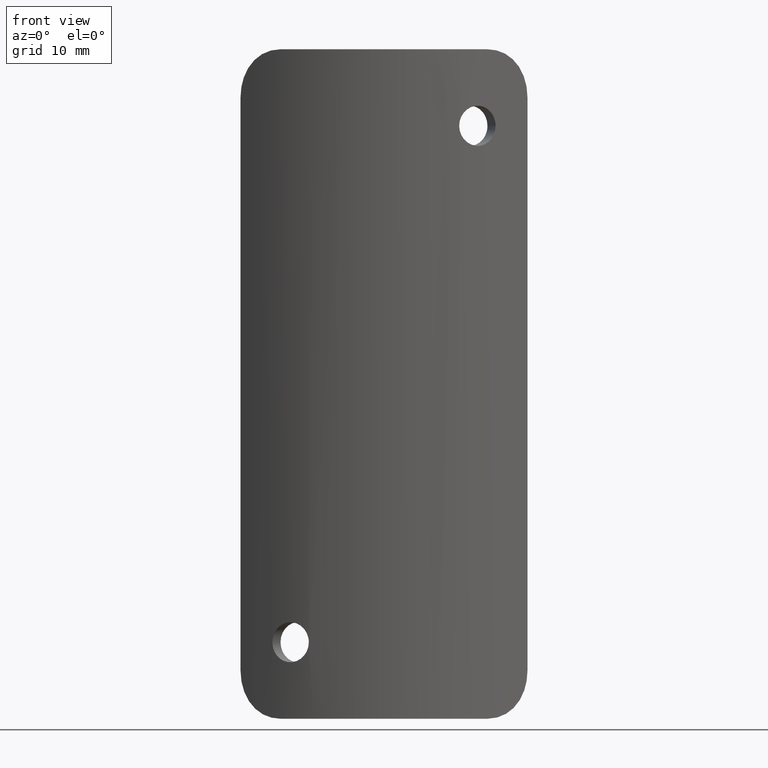
[diagram: clean part render]
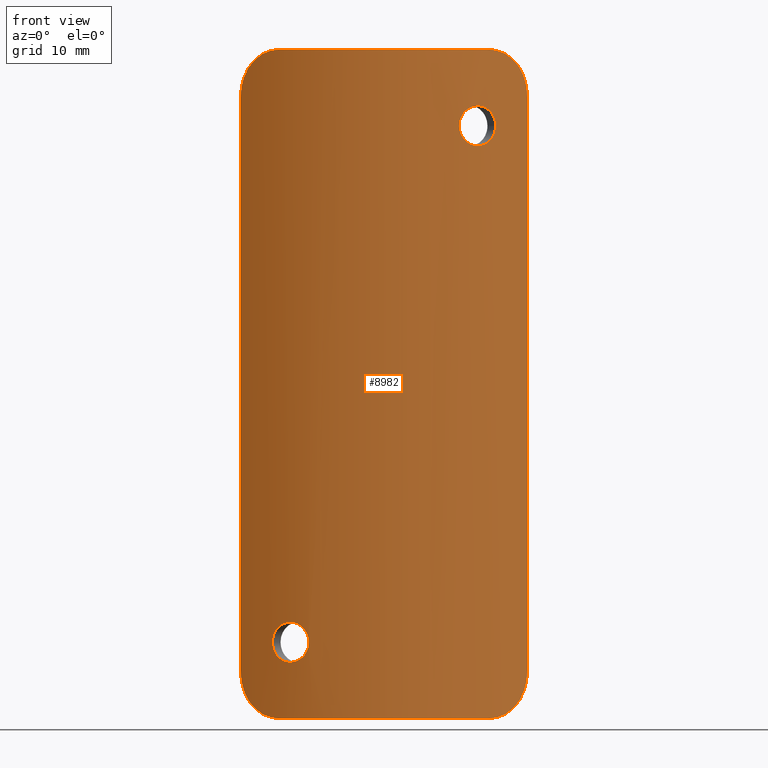
[diagram: same view with one face highlighted and labeled with its STEP entity id]
A machine part, front view. The second image highlights one B-rep face of the part: STEP entity #8982.
In plain terms, the highlighted cylindrical surface (partial cylindrical patch) has radius 23.2 mm, axis along (-0, -0, -1).
Its self-contained STEP definition (entity closure, byte-faithful):
#132 = CARTESIAN_POINT ( 'NONE',  ( 12.23442262474282500, 3.487468555197882600, -34.74389137964884400 ) ) ;
#244 = DIRECTION ( 'NONE',  ( -0.0000000000000000000, -0.0000000000000000000, -1.000000000000000000 ) ) ;
#322 = CARTESIAN_POINT ( 'NONE',  ( 15.00000000000000000, 5.501412485737739100, -30.00000000000000000 ) ) ;
#417 = EDGE_CURVE ( 'NONE', #5100, #6401, #10190, .T. ) ;
#570 = CARTESIAN_POINT ( 'NONE',  ( -14.03022683508562300, 4.721720751935532000, -33.31645638462633500 ) ) ;
#622 = CARTESIAN_POINT ( 'NONE',  ( 9.307728600475178000, 1.948548024565661900, 29.03250418342880600 ) ) ;
#650 = CARTESIAN_POINT ( 'NONE',  ( -12.75482834120329100, 3.818407806103518300, -34.50215239320542800 ) ) ;
#660 = CARTESIAN_POINT ( 'NONE',  ( 7.962638771654095400, 1.409194976379207800, 26.32284805849836200 ) ) ;
#688 = CARTESIAN_POINT ( 'NONE',  ( -11.12645634917023200, 2.839450259414585200, -34.99999999999999300 ) ) ;
#690 = CARTESIAN_POINT ( 'NONE',  ( -14.48444419914794600, 5.076120273882284400, 32.51901059687787000 ) ) ;
#739 = CARTESIAN_POINT ( 'NONE',  ( 7.913158109340555400, 1.390989553821755600, 27.54980088115337700 ) ) ;
#759 = ORIENTED_EDGE ( 'NONE', *, *, #8626, .T. ) ;
#779 = CARTESIAN_POINT ( 'NONE',  ( -11.42523216493447400, 3.008172746812964000, -28.05423771273592600 ) ) ;
#791 = VERTEX_POINT ( 'NONE', #8908 ) ;
#814 = CARTESIAN_POINT ( 'NONE',  ( -11.66769691000061800, 3.147447822811022100, -27.13784508582847000 ) ) ;
#838 = DIRECTION ( 'NONE',  ( 0.0000000000000000000, 0.0000000000000000000, 1.000000000000000000 ) ) ;
#886 = EDGE_LOOP ( 'NONE', ( #7632 ) ) ;
#1027 = CARTESIAN_POINT ( 'NONE',  ( 12.75482834120329500, 3.818407806103519600, 34.50215239320544200 ) ) ;
#1150 = CARTESIAN_POINT ( 'NONE',  ( 11.96464518403134900, 3.322569116121500500, -34.83727335060223900 ) ) ;
#1361 = CARTESIAN_POINT ( 'NONE',  ( -7.874127160052063700, 1.377102860145696900, -27.27529048676442300 ) ) ;
#1390 = CARTESIAN_POINT ( 'NONE',  ( -14.60700381599535000, 5.175254722145281100, -32.22582440934785100 ) ) ;
#1391 = CARTESIAN_POINT ( 'NONE',  ( 9.308753193418700900, 1.948993873017810700, 24.96716583704933600 ) ) ;
#1438 = CARTESIAN_POINT ( 'NONE',  ( -8.619728285299064700, 1.659852904994118200, -28.67867757179805800 ) ) ;
#1476 = CARTESIAN_POINT ( 'NONE',  ( -10.29566393990228300, 2.409197912018562300, -29.03283416295068900 ) ) ;
#1505 = CARTESIAN_POINT ( 'NONE',  ( 9.677206955224203700, 2.114201460649687300, 29.09986515293257600 ) ) ;
#1546 = CARTESIAN_POINT ( 'NONE',  ( -11.96464518403135100, 3.322569116121499600, 34.83727335060223900 ) ) ;
#1555 = CARTESIAN_POINT ( 'NONE',  ( -9.556401047898733100, 2.059204641938932500, -24.91338616533125000 ) ) ;
#1585 = CARTESIAN_POINT ( 'NONE',  ( -13.65466857054987100, 4.442489584951294600, 33.78011486728410500 ) ) ;
#1600 = CARTESIAN_POINT ( 'NONE',  ( -8.111820650231072300, 1.464097353052939100, -25.94142409401207800 ) ) ;
#1622 = CARTESIAN_POINT ( 'NONE',  ( -10.83314977002181200, 2.684570049343925300, -35.00000000000000000 ) ) ;
#1630 = CARTESIAN_POINT ( 'NONE',  ( 10.29340675336584000, 2.408083138645950200, 29.03347459347923000 ) ) ;
#1634 = CARTESIAN_POINT ( 'NONE',  ( -9.680891404952451000, 2.115892807571261500, -24.89986710950886100 ) ) ;
#1643 = DIRECTION ( 'NONE',  ( -1.000000000000000000, 0.0000000000000000000, 0.0000000000000000000 ) ) ;
#1667 = CARTESIAN_POINT ( 'NONE',  ( -11.21607812100468500, 2.891153436347354800, -28.38760635895905400 ) ) ;
#1692 = DIRECTION ( 'NONE',  ( 1.000000000000000000, 0.0000000000000000000, 0.0000000000000000000 ) ) ;
#1788 = B_SPLINE_CURVE_WITH_KNOTS ( 'NONE', 3,
 ( #9907, #7125, #1793, #2687, #10807, #8015, #5437, #10649, #10763, #4411, #8270, #4665, #2926, #8184, #1027, #5485, #5626, #8302, #6434, #2965 ),
 .UNSPECIFIED., .F., .F.,
 ( 4, 2, 2, 2, 2, 2, 2, 2, 2, 4 ),
 ( 0.0000000000000000000, 0.0009810281872593648100, 0.001471542280889052600, 0.001962056374518740000, 0.002943084561778097900, 0.003924112749037454900, 0.004905140936296812300, 0.005886169123556169800, 0.006867197310815527200, 0.007848225498074885500 ),
 .UNSPECIFIED. ) ;
#1793 = CARTESIAN_POINT ( 'NONE',  ( 14.97510921594164300, 5.480231257654566000, 30.65786404406684100 ) ) ;
#1814 = CIRCLE ( 'NONE', #6909, 23.19999999999999900 ) ;
#1886 = CARTESIAN_POINT ( 'NONE',  ( 11.82782812730095200, 3.240834637888148500, -34.87596285695244100 ) ) ;
#1964 = CARTESIAN_POINT ( 'NONE',  ( 14.87559443967096800, 5.396603859556192300, -31.30744440984392800 ) ) ;
#1966 = CYLINDRICAL_SURFACE ( 'NONE', #9991, 23.19999999999999900 ) ;
#2036 = CARTESIAN_POINT ( 'NONE',  ( -15.00000000000000000, 5.501412485737739100, -30.00000000000000000 ) ) ;
#2039 = CARTESIAN_POINT ( 'NONE',  ( 14.97510956906191000, 5.480228064059918600, -30.65951420281654200 ) ) ;
#2066 = EDGE_CURVE ( 'NONE', #6401, #10739, #10256, .T. ) ;
#2243 = CARTESIAN_POINT ( 'NONE',  ( -15.00000000000000000, 5.501412485737739100, 30.00000000000000400 ) ) ;
#2281 = CARTESIAN_POINT ( 'NONE',  ( 8.954385668924171400, 1.797309329608360000, 25.11200540083283200 ) ) ;
#2314 = CARTESIAN_POINT ( 'NONE',  ( 11.43648963290071300, 3.014415960502157900, 28.05857590598792900 ) ) ;
#2318 = CARTESIAN_POINT ( 'NONE',  ( -9.302593747911236800, 1.945220261506654300, -29.04462636027112400 ) ) ;
#2350 = CARTESIAN_POINT ( 'NONE',  ( 7.925123667723340800, 1.395570529295715200, 26.45374257106009700 ) ) ;
#2394 = CARTESIAN_POINT ( 'NONE',  ( 15.00000000000000000, 5.501412485737739100, 30.00000000000000400 ) ) ;
#2395 = CARTESIAN_POINT ( 'NONE',  ( 8.061953416911000800, 1.445742787011475000, 26.06851042738382800 ) ) ;
#2402 = CARTESIAN_POINT ( 'NONE',  ( -7.861247753960720200, 1.372476463170457800, -27.13881220170326700 ) ) ;
#2426 = CARTESIAN_POINT ( 'NONE',  ( -12.36767524882911800, 3.570842073408303300, 34.68895253670208200 ) ) ;
#2430 = CARTESIAN_POINT ( 'NONE',  ( 8.530999436278357000, 1.625206703639449100, 25.41642991945718000 ) ) ;
#2436 = CARTESIAN_POINT ( 'NONE',  ( -11.57443955660469500, 3.093405342131880800, -27.67715194150164500 ) ) ;
#2463 = CARTESIAN_POINT ( 'NONE',  ( -13.44412280948601400, 4.290459674662161900, 33.99065576229236300 ) ) ;
#2477 = VERTEX_POINT ( 'NONE', #5781 ) ;
#2592 = CARTESIAN_POINT ( 'NONE',  ( -11.43809849459442800, 3.015329808666905400, -25.94461488318422600 ) ) ;
#2616 = CARTESIAN_POINT ( 'NONE',  ( 0.0000000000000000000, 23.19999999999999900, 35.00000000000000000 ) ) ;
#2687 = CARTESIAN_POINT ( 'NONE',  ( 14.90157689353585000, 5.418435637887928800, 31.13908380836160100 ) ) ;
#2926 = CARTESIAN_POINT ( 'NONE',  ( 13.45131285305777900, 4.295551042060822900, 33.98416085090834600 ) ) ;
#2928 = CARTESIAN_POINT ( 'NONE',  ( 15.00000000000000000, 5.501412485737739100, -30.00000000000000000 ) ) ;
#2965 = CARTESIAN_POINT ( 'NONE',  ( 10.83314977002181200, 2.684570049343922200, 35.00000000000000000 ) ) ;
#3033 = CARTESIAN_POINT ( 'NONE',  ( 11.66774045951465100, 3.147473162481369900, 27.00000000000000000 ) ) ;
#3070 = CARTESIAN_POINT ( 'NONE',  ( -7.861247753960722000, 1.372476463170457800, -27.00000000000000000 ) ) ;
#3106 = EDGE_CURVE ( 'NONE', #2477, #11276, #9357, .T. ) ;
#3147 = CARTESIAN_POINT ( 'NONE',  ( 10.05415582883520800, 2.289977052102594600, 24.90014931470349800 ) ) ;
#3228 = CARTESIAN_POINT ( 'NONE',  ( 7.861153341691664100, 1.372442460309304200, 27.27339045575411100 ) ) ;
#3268 = CARTESIAN_POINT ( 'NONE',  ( 7.861295158362414000, 1.372493536007548800, 26.86215491417153700 ) ) ;
#3327 = EDGE_CURVE ( 'NONE', #5693, #5693, #9001, .T. ) ;
#3342 = CARTESIAN_POINT ( 'NONE',  ( -15.00000000000000000, 5.501412485737739100, 30.00000000000000400 ) ) ;
#3347 = CARTESIAN_POINT ( 'NONE',  ( 8.256964454953582300, 1.518208073395195000, 28.28970354053993200 ) ) ;
#3355 = CARTESIAN_POINT ( 'NONE',  ( -10.95011621297468500, 2.746444646752357300, -28.67032311735061300 ) ) ;
#3386 = CARTESIAN_POINT ( 'NONE',  ( -12.75293862320744300, 3.817134258757923800, 34.50339729612709800 ) ) ;
#3391 = CARTESIAN_POINT ( 'NONE',  ( 10.94887909512751800, 2.745780214667029800, 28.67142733655464300 ) ) ;
#3397 = CARTESIAN_POINT ( 'NONE',  ( -10.29666407528058900, 2.409696209888569000, -24.96749581657120100 ) ) ;
#3492 = VECTOR ( 'NONE', #244, 1000.000000000000000 ) ;
#3508 = CARTESIAN_POINT ( 'NONE',  ( -11.04362978023476800, 2.796865475138933900, -28.58357008054281700 ) ) ;
#3731 = CARTESIAN_POINT ( 'NONE',  ( 12.75293862320744300, 3.817134258757927800, -34.50339729612709800 ) ) ;
#3977 = CARTESIAN_POINT ( 'NONE',  ( 11.48261685958656400, 3.040825698963225000, 26.06854489139425400 ) ) ;
#4011 = CARTESIAN_POINT ( 'NONE',  ( 11.21543587615502200, 2.890804761030691100, 25.61173249437751700 ) ) ;
#4091 = CARTESIAN_POINT ( 'NONE',  ( 11.65591771116447400, 3.140580755667601300, 26.72470951323559200 ) ) ;
#4096 = DIRECTION ( 'NONE',  ( -0.0000000000000000000, -0.0000000000000000000, -1.000000000000000000 ) ) ;
#4127 = CARTESIAN_POINT ( 'NONE',  ( -7.924519912816604600, 1.395351361218778700, -27.54377451134175900 ) ) ;
#4197 = CARTESIAN_POINT ( 'NONE',  ( 11.29982798221459300, 2.936939717797600700, 28.29257028280422400 ) ) ;
#4232 = CARTESIAN_POINT ( 'NONE',  ( -12.99354470691067900, 3.978060727865324600, 34.35140152463027600 ) ) ;
#4238 = CARTESIAN_POINT ( 'NONE',  ( 10.41274259708186600, 2.467633843940527900, 28.99323138989153400 ) ) ;
#4245 = CARTESIAN_POINT ( 'NONE',  ( -11.30174177697097800, 2.938011056028557300, -25.71029645946008900 ) ) ;
#4270 = ORIENTED_EDGE ( 'NONE', *, *, #3106, .T. ) ;
#4271 = CARTESIAN_POINT ( 'NONE',  ( -12.99827888839000100, 3.981239534928378500, -34.34833038998072400 ) ) ;
#4289 = CARTESIAN_POINT ( 'NONE',  ( 0.0000000000000000000, 23.19999999999999900, 35.00000000000000000 ) ) ;
#4291 = CARTESIAN_POINT ( 'NONE',  ( -14.90157689353585000, 5.418435637887927900, -31.13908380836159800 ) ) ;
#4305 = CARTESIAN_POINT ( 'NONE',  ( -13.45131285305777900, 4.295551042060824700, -33.98416085090833100 ) ) ;
#4320 = CARTESIAN_POINT ( 'NONE',  ( -8.842775372096673100, 1.751028365325581400, -25.17644128419543400 ) ) ;
#4338 = FACE_BOUND ( 'NONE', #11386, .T. ) ;
#4369 = CARTESIAN_POINT ( 'NONE',  ( -14.79717746278124200, 5.331428635318053100, -31.61351948218466700 ) ) ;
#4399 = CARTESIAN_POINT ( 'NONE',  ( -10.41611459258833400, 2.469329201255621600, -25.00806111588921300 ) ) ;
#4411 = CARTESIAN_POINT ( 'NONE',  ( 14.19898874084782900, 4.851643174295933400, 33.05877579252637600 ) ) ;
#4586 = CARTESIAN_POINT ( 'NONE',  ( 12.36767524882912500, 3.570842073408308600, -34.68895253670207500 ) ) ;
#4624 = CARTESIAN_POINT ( 'NONE',  ( 13.65466857054987800, 4.442489584951296400, -33.78011486728410500 ) ) ;
#4665 = CARTESIAN_POINT ( 'NONE',  ( 13.65703972118552500, 4.444218622852116800, 33.77756137167098400 ) ) ;
#4705 = CARTESIAN_POINT ( 'NONE',  ( 10.83314977002181200, 2.684570049343925300, -35.00000000000000000 ) ) ;
#4764 = VERTEX_POINT ( 'NONE', #2394 ) ;
#4832 = ORIENTED_EDGE ( 'NONE', *, *, #3327, .T. ) ;
#4879 = CARTESIAN_POINT ( 'NONE',  ( 11.42636840326498800, 3.008815193725279600, 25.94795506955009000 ) ) ;
#4921 = CARTESIAN_POINT ( 'NONE',  ( 11.60954671122714600, 3.113707577823984400, 26.45622548865824400 ) ) ;
#4994 = CARTESIAN_POINT ( 'NONE',  ( -7.962648757339079200, 1.409198656063846800, -27.67717661205382000 ) ) ;
#5024 = CARTESIAN_POINT ( 'NONE',  ( 11.66774045951465100, 3.147473162481369000, 26.99999999999999600 ) ) ;
#5067 = CARTESIAN_POINT ( 'NONE',  ( 10.63969512896365000, 2.583183990132943600, 28.88797387252049400 ) ) ;
#5100 = VERTEX_POINT ( 'NONE', #5920 ) ;
#5113 = CARTESIAN_POINT ( 'NONE',  ( -7.914091286845179600, 1.391326100779150600, -26.44655874034764800 ) ) ;
#5142 = CARTESIAN_POINT ( 'NONE',  ( -14.87559443967096800, 5.396603859556190500, 31.30744440984392800 ) ) ;
#5145 = CARTESIAN_POINT ( 'NONE',  ( -14.48662438620404900, 5.077881101837939500, -32.51387117169059600 ) ) ;
#5179 = CARTESIAN_POINT ( 'NONE',  ( 10.83314977002181200, 2.684570049343922200, 35.00000000000000000 ) ) ;
#5190 = CARTESIAN_POINT ( 'NONE',  ( 8.628232413082935500, 1.663829277808723600, 28.66912078386215500 ) ) ;
#5268 = CARTESIAN_POINT ( 'NONE',  ( -11.04667431031917400, 2.798520213683701700, -25.41961516200658600 ) ) ;
#5399 = ORIENTED_EDGE ( 'NONE', *, *, #417, .T. ) ;
#5437 = CARTESIAN_POINT ( 'NONE',  ( 14.75377281999314100, 5.295526026184298900, 31.77020031090759000 ) ) ;
#5485 = CARTESIAN_POINT ( 'NONE',  ( 12.24443542670796800, 3.491992412594047600, 34.74863895066808100 ) ) ;
#5548 = ORIENTED_EDGE ( 'NONE', *, *, #6611, .F. ) ;
#5559 = CARTESIAN_POINT ( 'NONE',  ( 14.60603579175639400, 5.174473673707304900, -32.22804193931826700 ) ) ;
#5592 = LINE ( 'NONE', #9225, #3492 ) ;
#5604 = FACE_BOUND ( 'NONE', #886, .T. ) ;
#5626 = CARTESIAN_POINT ( 'NONE',  ( 11.97375992522363000, 3.326037271494497500, 34.84305435755177900 ) ) ;
#5693 = VERTEX_POINT ( 'NONE', #3070 ) ;
#5781 = CARTESIAN_POINT ( 'NONE',  ( 10.83314977002181200, 2.684570049343925300, -35.00000000000000000 ) ) ;
#5790 = CARTESIAN_POINT ( 'NONE',  ( 10.75307519127948400, 2.640931779352591500, 25.16488457428756900 ) ) ;
#5797 = DIRECTION ( 'NONE',  ( 1.000000000000000000, 0.0000000000000000000, 0.0000000000000000000 ) ) ;
#5818 = EDGE_CURVE ( 'NONE', #6525, #6525, #6166, .T. ) ;
#5824 = CARTESIAN_POINT ( 'NONE',  ( 9.554908008423368000, 2.058527005537564800, 24.91357048950122200 ) ) ;
#5870 = CARTESIAN_POINT ( 'NONE',  ( -8.265591076912894400, 1.522226984361852800, -28.28026605584409500 ) ) ;
#5920 = CARTESIAN_POINT ( 'NONE',  ( -10.83314977002181200, 2.684570049343922200, 35.00000000000000000 ) ) ;
#5974 = CARTESIAN_POINT ( 'NONE',  ( -11.41317114607336000, 2.998889989127933900, -34.96881826492291600 ) ) ;
#5987 = CARTESIAN_POINT ( 'NONE',  ( -7.861247753960720200, 1.372476463170458000, -27.00000000000000400 ) ) ;
#6020 = CARTESIAN_POINT ( 'NONE',  ( -14.19393931542399100, 4.847718757738250300, 33.06730687304268200 ) ) ;
#6065 = CARTESIAN_POINT ( 'NONE',  ( 9.553043936061357000, 2.057687583426996500, 29.08612928894901000 ) ) ;
#6079 = DIRECTION ( 'NONE',  ( -0.0000000000000000000, -0.0000000000000000000, -1.000000000000000000 ) ) ;
#6103 = CARTESIAN_POINT ( 'NONE',  ( -11.48260408593012900, 3.040818389848090500, -27.93148957261618600 ) ) ;
#6147 = CARTESIAN_POINT ( 'NONE',  ( -10.63964409550850300, 2.583158239894866300, -28.88799459916717200 ) ) ;
#6166 = B_SPLINE_CURVE_WITH_KNOTS ( 'NONE', 3,
 ( #8410, #9338, #4091, #4921, #10357, #3977, #4879, #11148, #4011, #10291, #5790, #8486, #3147, #11226, #5824, #1391, #7609, #2281, #8525, #9602, #2430, #6920, #10518, #7801, #2395, #660, #2350, #8568, #3268, #3228, #739, #7678, #3347, #11462, #5190, #10398, #11336, #10437, #622, #6065, #1505, #11306, #9642, #1630, #4238, #5067, #7720, #3391, #6953, #4197, #2314, #6833, #8648, #5024 ),
 .UNSPECIFIED., .T., .F.,
 ( 4, 2, 2, 2, 2, 2, 2, 2, 2, 2, 2, 2, 2, 2, 2, 2, 2, 2, 2, 2, 2, 2, 2, 2, 2, 2, 4 ),
 ( 0.0000000000000000000, 0.0004105094372159218200, 0.0008210188744318436300, 0.001231528311647765500, 0.001642037748863687300, 0.002463056623295541400, 0.003284075497727396200, 0.003694584934943321400, 0.004105094372159245400, 0.004515603809375171000, 0.004926113246591095000, 0.005336622683807019800, 0.005747132121022944600, 0.006157641558238869300, 0.006568150995454794100, 0.007389169869886654100, 0.008210188744318513300, 0.008620698181534446800, 0.009031207618750380200, 0.009441717055966313700, 0.009852226493182247200, 0.01026273593039818100, 0.01067324536761411400, 0.01108375480483004800, 0.01149426424204598100, 0.01231528311647784800, 0.01313630199090971700 ),
 .UNSPECIFIED. ) ;
#6324 = CARTESIAN_POINT ( 'NONE',  ( 12.99354470691068500, 3.978060727865325500, -34.35140152463026900 ) ) ;
#6394 = CARTESIAN_POINT ( 'NONE',  ( 14.19393931542399500, 4.847718757738251200, -33.06730687304266800 ) ) ;
#6401 = VERTEX_POINT ( 'NONE', #2243 ) ;
#6418 = ORIENTED_EDGE ( 'NONE', *, *, #9320, .F. ) ;
#6434 = CARTESIAN_POINT ( 'NONE',  ( 11.12645634917023500, 2.839450259414585200, 35.00000000000000000 ) ) ;
#6525 = VERTEX_POINT ( 'NONE', #3033 ) ;
#6574 = VERTEX_POINT ( 'NONE', #5179 ) ;
#6611 = EDGE_CURVE ( 'NONE', #5100, #6574, #1814, .T. ) ;
#6712 = CARTESIAN_POINT ( 'NONE',  ( -10.83314977002181200, 2.684570049343922200, 35.00000000000000000 ) ) ;
#6757 = CARTESIAN_POINT ( 'NONE',  ( -8.348602938604251700, 1.553978607599798800, -28.38826750562248000 ) ) ;
#6758 = CARTESIAN_POINT ( 'NONE',  ( -15.00000000000000000, 5.501412485737739100, 35.00000000000000000 ) ) ;
#6797 = CARTESIAN_POINT ( 'NONE',  ( -8.122616887502339000, 1.468250561283997300, -28.05204493044991300 ) ) ;
#6833 = CARTESIAN_POINT ( 'NONE',  ( 11.61933363117951100, 3.119108981262405800, 27.55344125965235900 ) ) ;
#6867 = CARTESIAN_POINT ( 'NONE',  ( -14.19898874084783300, 4.851643174295934300, -33.05877579252638300 ) ) ;
#6882 = CARTESIAN_POINT ( 'NONE',  ( -10.74877246296487600, 2.639920666363556400, -28.82227293037575700 ) ) ;
#6909 = AXIS2_PLACEMENT_3D ( 'NONE', #2616, #838, #1692 ) ;
#6916 = CARTESIAN_POINT ( 'NONE',  ( -12.23442262474282300, 3.487468555197881200, 34.74389137964884400 ) ) ;
#6920 = CARTESIAN_POINT ( 'NONE',  ( 8.347923010783727400, 1.553710743674947100, 25.61239364104095300 ) ) ;
#6925 = CARTESIAN_POINT ( 'NONE',  ( -11.66782719425424000, 3.147523629857605300, -26.72660954424587500 ) ) ;
#6953 = CARTESIAN_POINT ( 'NONE',  ( 11.04419784778377100, 2.797178503796087200, 28.58285724964775600 ) ) ;
#7000 = CARTESIAN_POINT ( 'NONE',  ( -9.932270072604815400, 2.233139345597153100, -24.90013484706743800 ) ) ;
#7038 = CARTESIAN_POINT ( 'NONE',  ( -9.188731962297623600, 1.896868311277484000, -25.00676861010845900 ) ) ;
#7096 = CIRCLE ( 'NONE', #11176, 23.19999999999999900 ) ;
#7125 = CARTESIAN_POINT ( 'NONE',  ( 15.00000000000000400, 5.501412485737740900, 30.33171382143461900 ) ) ;
#7151 = EDGE_CURVE ( 'NONE', #4764, #6574, #1788, .T. ) ;
#7298 = CARTESIAN_POINT ( 'NONE',  ( 14.80099279183359700, 5.334208854180853400, -31.62438927044328100 ) ) ;
#7322 = EDGE_LOOP ( 'NONE', ( #11225, #4270, #6418, #9182, #5548, #5399, #10976, #759 ) ) ;
#7366 = CARTESIAN_POINT ( 'NONE',  ( 14.48444419914795000, 5.076120273882287000, -32.51901059687786200 ) ) ;
#7580 = CARTESIAN_POINT ( 'NONE',  ( -7.861247753960720200, 1.372476463170458000, -27.00000000000000400 ) ) ;
#7609 = CARTESIAN_POINT ( 'NONE',  ( 9.188609805467708100, 1.896816189048957700, 25.00682060397417700 ) ) ;
#7621 = CARTESIAN_POINT ( 'NONE',  ( -14.97510921594164100, 5.480231257654565100, -30.65786404406683700 ) ) ;
#7632 = ORIENTED_EDGE ( 'NONE', *, *, #5818, .T. ) ;
#7653 = CARTESIAN_POINT ( 'NONE',  ( -8.837216467148511600, 1.747552184347268300, -28.83511542571244100 ) ) ;
#7672 = CARTESIAN_POINT ( 'NONE',  ( -11.97375992522363000, 3.326037271494500100, -34.84305435755177900 ) ) ;
#7678 = CARTESIAN_POINT ( 'NONE',  ( 8.110086445560201100, 1.463452303770160100, 28.05538511681578100 ) ) ;
#7720 = CARTESIAN_POINT ( 'NONE',  ( 10.74683908693366900, 2.638907857169117100, 28.82355871580457000 ) ) ;
#7754 = CARTESIAN_POINT ( 'NONE',  ( -14.02823910118792700, 4.720208917248943000, 33.31928430158714600 ) ) ;
#7765 = CARTESIAN_POINT ( 'NONE',  ( -8.259015311208981900, 1.518985482292955200, -25.70742971719578000 ) ) ;
#7797 = CARTESIAN_POINT ( 'NONE',  ( -14.97510956906190500, 5.480228064059914100, 30.65951420281653800 ) ) ;
#7801 = CARTESIAN_POINT ( 'NONE',  ( 8.123839390310028100, 1.468708013428028400, 25.94576228726408800 ) ) ;
#7851 = CARTESIAN_POINT ( 'NONE',  ( -8.954333139424736700, 1.797286787647614600, -25.11202612747952000 ) ) ;
#7886 = CARTESIAN_POINT ( 'NONE',  ( -8.530394495633045100, 1.624972749592518800, -25.41714275035224800 ) ) ;
#7894 = CARTESIAN_POINT ( 'NONE',  ( -14.87098106146724400, 5.392804102013833800, -31.29814612675537700 ) ) ;
#7919 = CARTESIAN_POINT ( 'NONE',  ( -11.65573469133665100, 3.140474120837317700, -27.27707472897759200 ) ) ;
#8015 = CARTESIAN_POINT ( 'NONE',  ( 14.79717746278123500, 5.331428635318047800, 31.61351948218468900 ) ) ;
#8184 = CARTESIAN_POINT ( 'NONE',  ( 12.99827888838999700, 3.981239534928377600, 34.34833038998073100 ) ) ;
#8231 = CARTESIAN_POINT ( 'NONE',  ( 14.02823910118792700, 4.720208917248943900, -33.31928430158713200 ) ) ;
#8270 = CARTESIAN_POINT ( 'NONE',  ( 14.03022683508561700, 4.721720751935530200, 33.31645638462632800 ) ) ;
#8273 = CARTESIAN_POINT ( 'NONE',  ( 15.00000000000000500, 5.501412485737743600, -30.33170270852548700 ) ) ;
#8302 = CARTESIAN_POINT ( 'NONE',  ( 11.41317114607336500, 2.998889989127932600, 34.96881826492291600 ) ) ;
#8410 = CARTESIAN_POINT ( 'NONE',  ( 11.66774045951465100, 3.147473162481369000, 26.99999999999999600 ) ) ;
#8416 = DIRECTION ( 'NONE',  ( 0.0000000000000000000, 0.0000000000000000000, 1.000000000000000000 ) ) ;
#8486 = CARTESIAN_POINT ( 'NONE',  ( 10.30251390928562700, 2.411490690299104200, 24.95537363972885800 ) ) ;
#8525 = CARTESIAN_POINT ( 'NONE',  ( 8.840756765083604300, 1.750198334561578600, 25.17772706962424700 ) ) ;
#8563 = CARTESIAN_POINT ( 'NONE',  ( -11.12640744382029300, 2.839424434999411800, 34.99999999999999300 ) ) ;
#8568 = CARTESIAN_POINT ( 'NONE',  ( 7.874326489948898300, 1.377174517920113100, 26.72292527102240800 ) ) ;
#8574 = CARTESIAN_POINT ( 'NONE',  ( -9.555320092093921900, 2.057366127898741800, -29.09985068529652400 ) ) ;
#8626 = EDGE_CURVE ( 'NONE', #10739, #791, #11164, .T. ) ;
#8648 = CARTESIAN_POINT ( 'NONE',  ( 11.66774045951464500, 3.147473162481368500, 27.27762440340654100 ) ) ;
#8691 = CARTESIAN_POINT ( 'NONE',  ( -15.00000000000000200, 5.501412485737736400, 30.33170270852548000 ) ) ;
#8700 = CARTESIAN_POINT ( 'NONE',  ( -7.861247753960722000, 1.372476463170458700, -26.72237559659347600 ) ) ;
#8735 = CARTESIAN_POINT ( 'NONE',  ( -11.29221699124742000, 2.933484432005014400, -28.28155875080986100 ) ) ;
#8759 = CARTESIAN_POINT ( 'NONE',  ( -15.00000000000000000, 5.501412485737738200, -30.33171382143461200 ) ) ;
#8857 = CARTESIAN_POINT ( 'NONE',  ( -10.74964505207482700, 2.640375120057588900, -25.17826146194735100 ) ) ;
#8908 = CARTESIAN_POINT ( 'NONE',  ( -10.83314977002181200, 2.684570049343925300, -35.00000000000000000 ) ) ;
#8982 = ADVANCED_FACE ( 'NONE', ( #4338, #5604, #10102 ), #1966, .T. ) ;
#9001 = B_SPLINE_CURVE_WITH_KNOTS ( 'NONE', 3,
 ( #7580, #2402, #1361, #4127, #4994, #11270, #6797, #5870, #6757, #1438, #7653, #2318, #8574, #9491, #10405, #1476, #11507, #6147, #6882, #3355, #3508, #1667, #8735, #779, #6103, #2436, #9650, #7919, #814, #6925, #11390, #2592, #4245, #5268, #11468, #8857, #9766, #4399, #3397, #10565, #7000, #1634, #1555, #9608, #7038, #7851, #4320, #10527, #7886, #7765, #1600, #5113, #8700, #5987 ),
 .UNSPECIFIED., .T., .F.,
 ( 4, 2, 2, 2, 2, 2, 2, 2, 2, 2, 2, 2, 2, 2, 2, 2, 2, 2, 2, 2, 2, 2, 2, 2, 2, 2, 4 ),
 ( 0.0000000000000000000, 0.0004105094372159294000, 0.0008210188744318588100, 0.001231528311647788300, 0.001642037748863717600, 0.002463056623295580000, 0.003284075497727442600, 0.003694584934943373900, 0.004105094372159306100, 0.004515603809375237800, 0.004926113246591169600, 0.005336622683807100400, 0.005747132121023033000, 0.006157641558238963900, 0.006568150995454895600, 0.007389169869886747800, 0.008210188744318601800, 0.008620698181534530000, 0.009031207618750458300, 0.009441717055966386600, 0.009852226493182313100, 0.01026273593039824100, 0.01067324536761417000, 0.01108375480483009600, 0.01149426424204602600, 0.01231528311647788100, 0.01313630199090973600 ),
 .UNSPECIFIED. ) ;
#9076 = CARTESIAN_POINT ( 'NONE',  ( 11.41158771934845000, 2.998047956496780100, -34.96882573644161600 ) ) ;
#9171 = CARTESIAN_POINT ( 'NONE',  ( -15.00000000000000000, 5.501412485737739100, -30.00000000000000000 ) ) ;
#9182 = ORIENTED_EDGE ( 'NONE', *, *, #7151, .T. ) ;
#9225 = CARTESIAN_POINT ( 'NONE',  ( 15.00000000000000000, 5.501412485737739100, 35.00000000000000000 ) ) ;
#9320 = EDGE_CURVE ( 'NONE', #4764, #11276, #5592, .T. ) ;
#9338 = CARTESIAN_POINT ( 'NONE',  ( 11.66774045951465400, 3.147473162481369400, 26.86118779829672900 ) ) ;
#9357 = B_SPLINE_CURVE_WITH_KNOTS ( 'NONE', 3,
 ( #4705, #9954, #9076, #1886, #1150, #132, #4586, #3731, #6324, #9998, #4624, #8231, #6394, #7366, #5559, #7298, #1964, #2039, #8273, #2928 ),
 .UNSPECIFIED., .F., .F.,
 ( 4, 2, 2, 2, 2, 2, 2, 2, 2, 4 ),
 ( 0.0000000000000000000, 0.0009810894829946101100, 0.001471634224491915600, 0.001962178965989221100, 0.002943268448983844200, 0.003924357931978467300, 0.004905447414973090000, 0.005886536897967713600, 0.006867626380962336300, 0.007848715863956960700 ),
 .UNSPECIFIED. ) ;
#9390 = EDGE_CURVE ( 'NONE', #791, #2477, #7096, .T. ) ;
#9491 = CARTESIAN_POINT ( 'NONE',  ( -9.927903276609187700, 2.231082197492480400, -29.10007419178111500 ) ) ;
#9597 = CARTESIAN_POINT ( 'NONE',  ( -14.80099279183359900, 5.334208854180851700, 31.62438927044328800 ) ) ;
#9602 = CARTESIAN_POINT ( 'NONE',  ( 8.629733394053717500, 1.664432368438242700, 25.32967688264940200 ) ) ;
#9608 = CARTESIAN_POINT ( 'NONE',  ( -9.311058050904495800, 1.950006415709607500, -24.96652540652078000 ) ) ;
#9642 = CARTESIAN_POINT ( 'NONE',  ( 10.05205262037316400, 2.290330765960324000, 29.08661383466875700 ) ) ;
#9650 = CARTESIAN_POINT ( 'NONE',  ( -11.60899073256636900, 3.113385953256970800, -27.54625742893992100 ) ) ;
#9766 = CARTESIAN_POINT ( 'NONE',  ( -10.64263029151064400, 2.584700452089851100, -25.11366645625553000 ) ) ;
#9907 = CARTESIAN_POINT ( 'NONE',  ( 15.00000000000000000, 5.501412485737739100, 30.00000000000000400 ) ) ;
#9954 = CARTESIAN_POINT ( 'NONE',  ( 11.12640744382029600, 2.839424434999414900, -35.00000000000000700 ) ) ;
#9991 = AXIS2_PLACEMENT_3D ( 'NONE', #4289, #6079, #1643 ) ;
#9998 = CARTESIAN_POINT ( 'NONE',  ( 13.44412280948602000, 4.290459674662163700, -33.99065576229237700 ) ) ;
#10102 = FACE_OUTER_BOUND ( 'NONE', #7322, .T. ) ;
#10190 = B_SPLINE_CURVE_WITH_KNOTS ( 'NONE', 3,
 ( #6712, #8563, #11301, #10514, #1546, #6916, #2426, #3386, #4232, #2463, #1585, #7754, #6020, #690, #11417, #9597, #5142, #7797, #8691, #3342 ),
 .UNSPECIFIED., .F., .F.,
 ( 4, 2, 2, 2, 2, 2, 2, 2, 2, 4 ),
 ( 0.0000000000000000000, 0.0009810894829946179200, 0.001471634224491926900, 0.001962178965989235800, 0.002943268448983857200, 0.003924357931978478600, 0.004905447414973099600, 0.005886536897967721400, 0.006867626380962342300, 0.007848715863956953800 ),
 .UNSPECIFIED. ) ;
#10256 = LINE ( 'NONE', #6758, #11103 ) ;
#10281 = CARTESIAN_POINT ( 'NONE',  ( -14.75377281999314500, 5.295526026184300700, -31.77020031090758300 ) ) ;
#10291 = CARTESIAN_POINT ( 'NONE',  ( 10.96005544543957900, 2.751165382355763800, 25.32132242820193800 ) ) ;
#10357 = CARTESIAN_POINT ( 'NONE',  ( 11.57443031912814200, 3.093400057909085900, 26.32282338794618700 ) ) ;
#10398 = CARTESIAN_POINT ( 'NONE',  ( 8.839847743888414700, 1.749822009726478900, 28.82173853805265300 ) ) ;
#10405 = CARTESIAN_POINT ( 'NONE',  ( -10.05353142724843400, 2.291038924271115100, -29.08642951049879200 ) ) ;
#10437 = CARTESIAN_POINT ( 'NONE',  ( 9.185265766315824400, 1.895374967533666200, 28.99193888411080200 ) ) ;
#10508 = CARTESIAN_POINT ( 'NONE',  ( -13.65703972118552300, 4.444218622852115900, -33.77756137167097000 ) ) ;
#10514 = CARTESIAN_POINT ( 'NONE',  ( -11.82782812730094900, 3.240834637888144100, 34.87596285695243400 ) ) ;
#10518 = CARTESIAN_POINT ( 'NONE',  ( 8.266554464380920600, 1.522594824734583700, 25.71844124919015700 ) ) ;
#10527 = CARTESIAN_POINT ( 'NONE',  ( -8.631037582584390600, 1.664952966978618900, -25.32857266344535700 ) ) ;
#10565 = CARTESIAN_POINT ( 'NONE',  ( -10.05537266450951400, 2.291927316413634200, -24.91387071105100000 ) ) ;
#10649 = CARTESIAN_POINT ( 'NONE',  ( 14.60700381599535000, 5.175254722145281100, 32.22582440934786500 ) ) ;
#10739 = VERTEX_POINT ( 'NONE', #9171 ) ;
#10763 = CARTESIAN_POINT ( 'NONE',  ( 14.48662438620404400, 5.077881101837934200, 32.51387117169059600 ) ) ;
#10807 = CARTESIAN_POINT ( 'NONE',  ( 14.87098106146723700, 5.392804102013831100, 31.29814612675538400 ) ) ;
#10976 = ORIENTED_EDGE ( 'NONE', *, *, #2066, .T. ) ;
#11103 = VECTOR ( 'NONE', #4096, 1000.000000000000000 ) ;
#11148 = CARTESIAN_POINT ( 'NONE',  ( 11.29311802684867200, 2.933985986387528800, 25.71973394415590900 ) ) ;
#11152 = CARTESIAN_POINT ( 'NONE',  ( 0.0000000000000000000, 23.19999999999999900, -35.00000000000000000 ) ) ;
#11164 = B_SPLINE_CURVE_WITH_KNOTS ( 'NONE', 3,
 ( #2036, #8759, #7621, #4291, #7894, #4369, #10281, #1390, #5145, #6867, #570, #10508, #4305, #4271, #650, #11373, #7672, #5974, #688, #1622 ),
 .UNSPECIFIED., .F., .F.,
 ( 4, 2, 2, 2, 2, 2, 2, 2, 2, 4 ),
 ( 0.0000000000000000000, 0.0009810281872593385700, 0.001471542280889012900, 0.001962056374518687500, 0.002943084561778053700, 0.003924112749037420200, 0.004905140936296786300, 0.005886169123556152400, 0.006867197310815518500, 0.007848225498074885500 ),
 .UNSPECIFIED. ) ;
#11176 = AXIS2_PLACEMENT_3D ( 'NONE', #11152, #8416, #5797 ) ;
#11225 = ORIENTED_EDGE ( 'NONE', *, *, #9390, .T. ) ;
#11226 = CARTESIAN_POINT ( 'NONE',  ( 9.681589744458472400, 2.116224311143401100, 24.89992580821889200 ) ) ;
#11270 = CARTESIAN_POINT ( 'NONE',  ( -8.061939607055876400, 1.445737700031588500, -27.93145510860576800 ) ) ;
#11276 = VERTEX_POINT ( 'NONE', #322 ) ;
#11301 = CARTESIAN_POINT ( 'NONE',  ( -11.41158771934844500, 2.998047956496775200, 34.96882573644160200 ) ) ;
#11306 = CARTESIAN_POINT ( 'NONE',  ( 9.928606107060328900, 2.231404070201749200, 29.10013289049116700 ) ) ;
#11336 = CARTESIAN_POINT ( 'NONE',  ( 8.951284776051819500, 1.796013085645296900, 28.88633354374446000 ) ) ;
#11373 = CARTESIAN_POINT ( 'NONE',  ( -12.24443542670797100, 3.491992412594046700, -34.74863895066808100 ) ) ;
#11386 = EDGE_LOOP ( 'NONE', ( #4832 ) ) ;
#11390 = CARTESIAN_POINT ( 'NONE',  ( -11.62019127604368600, 3.119607508489976100, -26.45019911884662300 ) ) ;
#11417 = CARTESIAN_POINT ( 'NONE',  ( -14.60603579175639800, 5.174473673707303200, 32.22804193931826700 ) ) ;
#11462 = CARTESIAN_POINT ( 'NONE',  ( 8.527774846795754400, 1.623938103720230700, 28.58038483799341400 ) ) ;
#11468 = CARTESIAN_POINT ( 'NONE',  ( -10.95154301917052700, 2.747206805700078500, -25.33087921613786300 ) ) ;
#11507 = CARTESIAN_POINT ( 'NONE',  ( -10.41286104592210100, 2.467693917978587100, -28.99317939602584100 ) ) ;